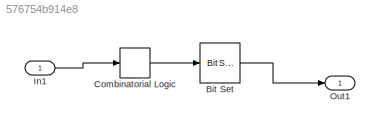
MODEL slx_576754b914e8
KIND model
CONFIG AbsTol = auto
CONFIG EnableMultiTasking = off
CONFIG FixedStep = auto
CONFIG MaxStep = auto
CONFIG MinStep = auto
CONFIG RelTol = 1e-3
CONFIG SampleTimeConstraint = Unconstrained
CONFIG Solver = VariableStepAuto
CONFIG SolverName = VariableStepAuto
CONFIG StartTime = 0.0
CONFIG StopTime = 10.0
BLOCK [Reference] Bit Set  REF=simulink/Logic and Bit
Operations/Bit Set
  Ports = [1, 1]
  SourceBlock = simulink/Logic and Bit\nOperations/Bit Set
  SourceType = Bit Set
BLOCK [CombinatorialLogic] Combinatorial Logic
BLOCK [Inport] In1
  IconDisplay = Port number
BLOCK [Outport] Out1
  IconDisplay = Port number
LINE Bit Set:1 -> Out1:1
LINE Combinatorial Logic:1 -> Bit Set:1
LINE In1:1 -> Combinatorial Logic:1
